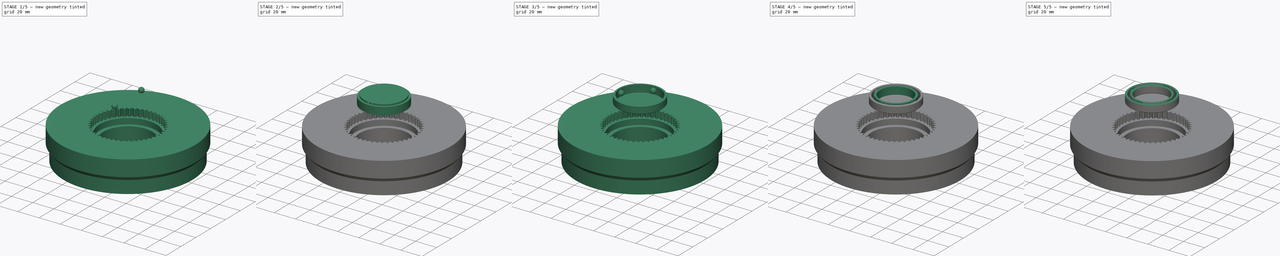
[diagram: build sequence overview — one tinted view per stage of 5, left to right]
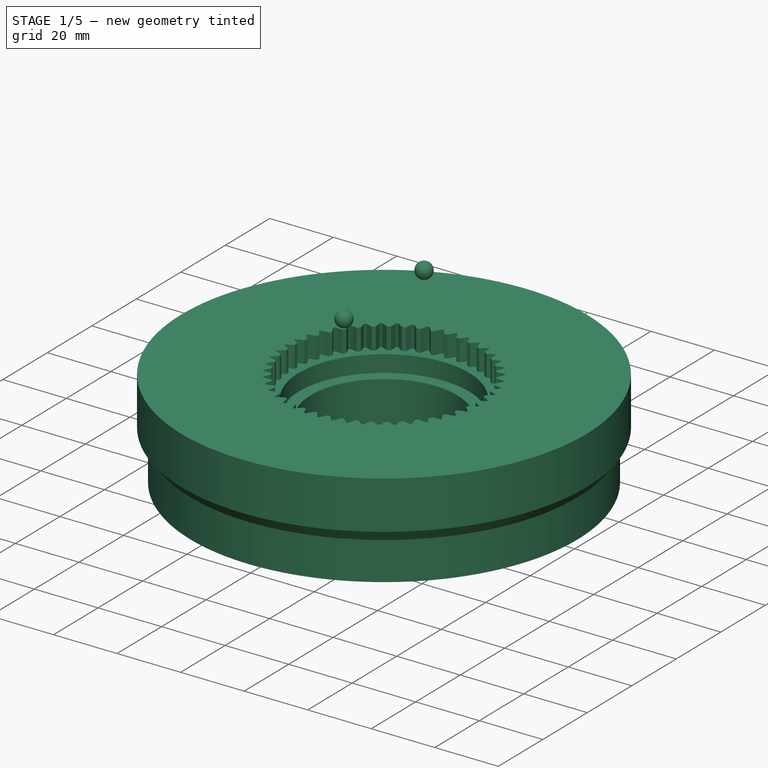
[diagram: stage 1 of 5 — iso view after this stage's code; geometry added in this stage tinted green]
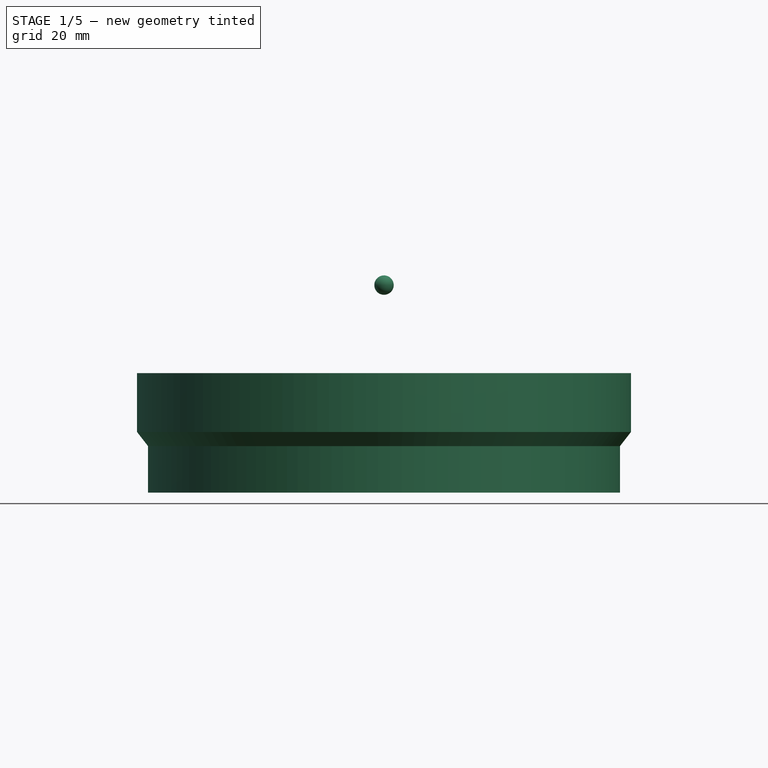
[diagram: stage 1 of 5 — front view after this stage's code; geometry added in this stage tinted green]
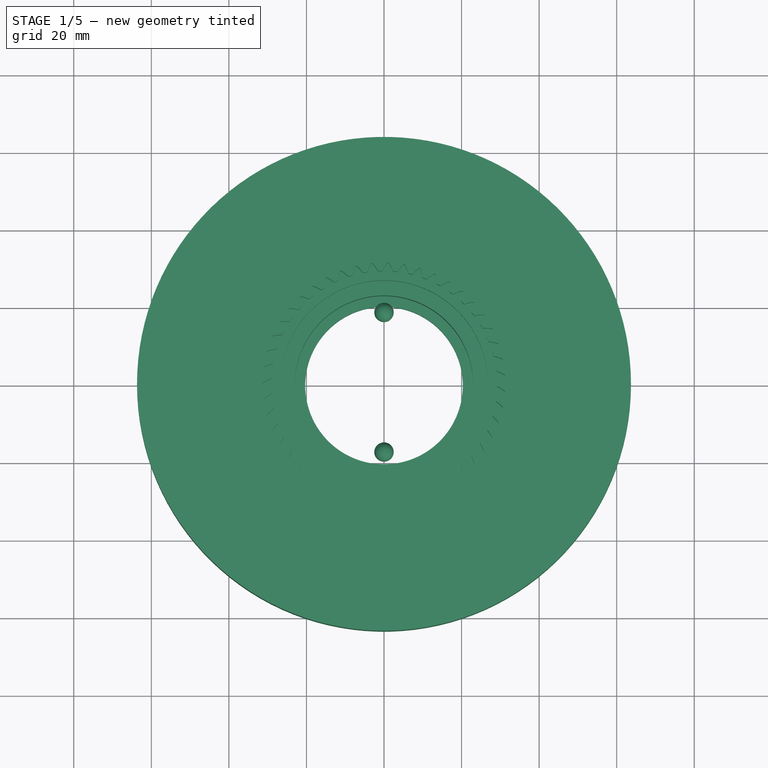
[diagram: stage 1 of 5 — top view after this stage's code; geometry added in this stage tinted green]
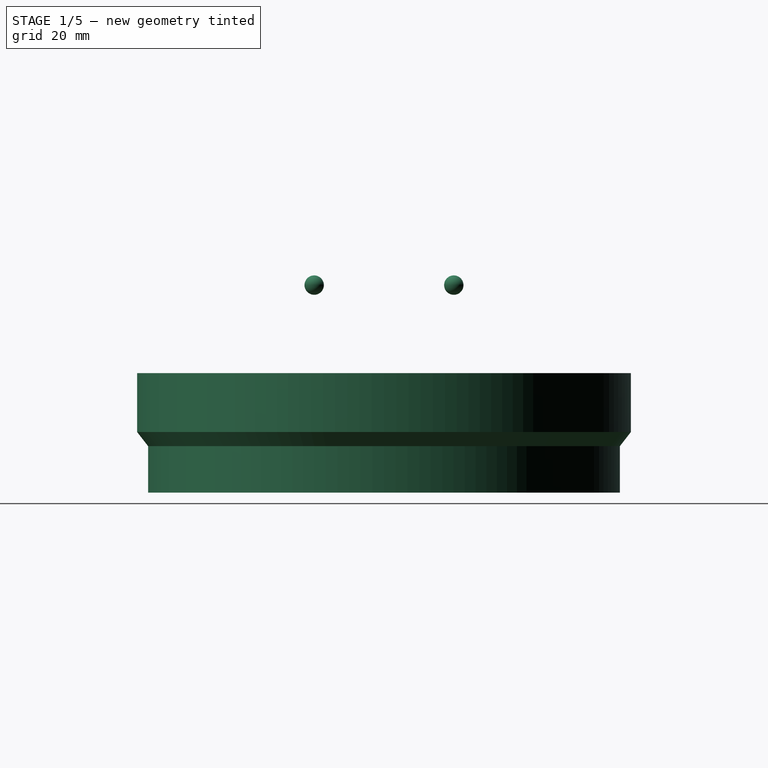
[diagram: stage 1 of 5 — right view after this stage's code; geometry added in this stage tinted green]
FCSTD DOCUMENT
Label: slewing_ring1
License: CC-BY 3.0
LicenseURL: http://creativecommons.org/licenses/by/3.0/
objects: Part::Chamfer×6, Part::Cylinder×4, Part::Sphere×4, Part::Cut×3, Sketcher::SketchObject×1, Part::MultiFuse×1, Part::Part2DObjectPython×1, Part::Extrusion×1, Part::Revolution×1, Part::Feature×1
note: 23 computed .brp shape members not serialized (recipe doc carries the construction recipe); baked Part::Feature solids carry a one-line shape summary decoded from their .brp

FEATURE [Part::Sphere] Sphere004  label="ballW"
  Angle1 = -90
  Angle2 = 90
  Angle3 = 360
  Placement = pos=(0,18,3.5) rot=(0,0,1;0rad)
  Radius = 2.5
FEATURE [Part::Sphere] Sphere005  label="ballE"
  Angle1 = -90
  Angle2 = 90
  Angle3 = 360
  Placement = pos=(0,-18,3.5) rot=(0,0,1;0rad)
  Radius = 2.5
FEATURE [Part::Part2DObjectPython] MainGear  # Draft 2D object (typed FeaturePython)
  ExternalGear = false
  HighPrecision = true
  Modules = 1.27324
  NumberOfTeeth = 47
  PressureAngle = 30
FEATURE [Part::Extrusion] Extrude  label="MainGearCutout"
  Base = -> MainGear
  Dir = (0,0,7)
  Placement = pos=(0,0,-26) rot=(0,0,1;0rad)
  Solid = true
FEATURE [Part::Revolution] Revolve
  Angle = 360
  Axis = (0,0,1)
  Base = (0,0,0)
  Source = -> Sketch
FEATURE [Part::Feature] Solid  label="Solid1"
  shape: bbox 127.4 x 127.4 x 30.8 mm, 10 faces (baked)
FEATURE [Part::Cut] Cut002
  Base = -> Solid
  Tool = -> Extrude
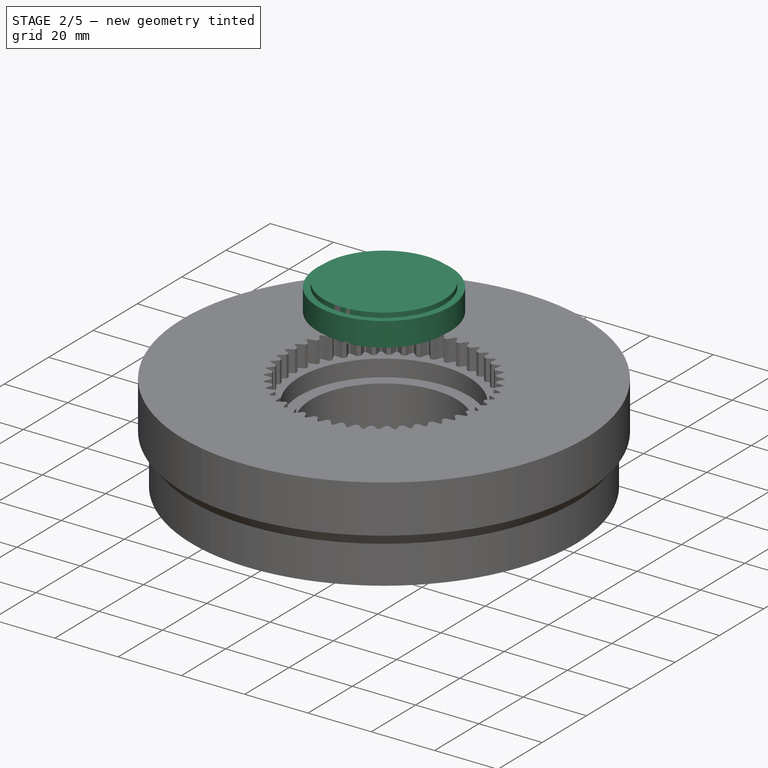
[diagram: stage 2 of 5 — iso view after this stage's code; geometry added in this stage tinted green]
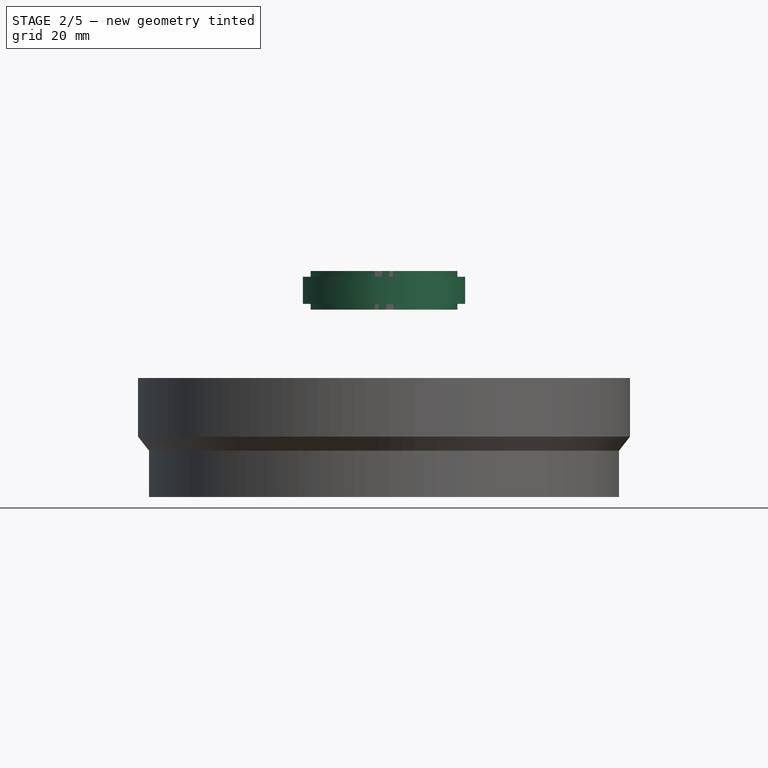
[diagram: stage 2 of 5 — front view after this stage's code; geometry added in this stage tinted green]
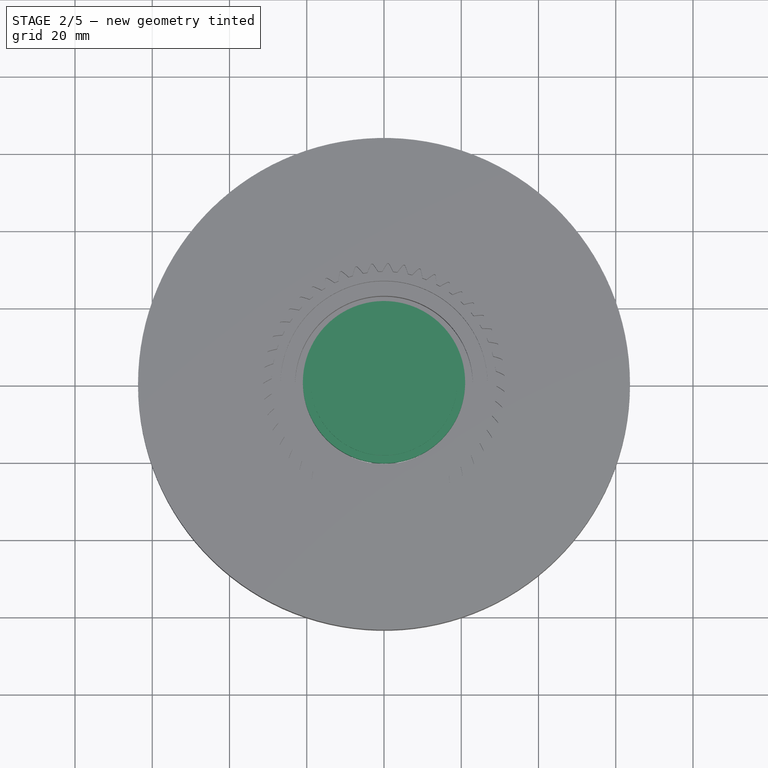
[diagram: stage 2 of 5 — top view after this stage's code; geometry added in this stage tinted green]
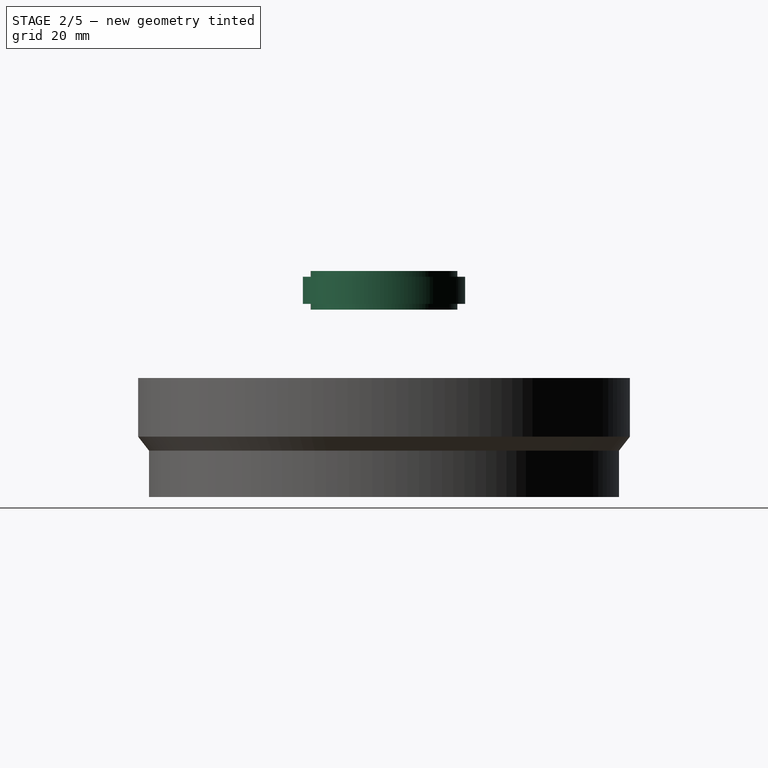
[diagram: stage 2 of 5 — right view after this stage's code; geometry added in this stage tinted green]
FEATURE [Sketcher::SketchObject] Sketch  label="Sketch1"
  Placement = pos=(0,0,-50) rot=(1,0,0;1.5708rad)
  sketch-geometry (10):
    g0: LineSegment StartX=-60.8487 StartY=0 StartZ=0 EndX=-60.8487 EndY=11.9881 EndZ=0
    g1: LineSegment StartX=-60.8487 StartY=11.9881 StartZ=0 EndX=-63.6812 EndY=15.6299 EndZ=0
    g2: LineSegment StartX=-63.6812 StartY=15.6299 StartZ=0 EndX=-63.6812 EndY=30.7971 EndZ=0
    g3: LineSegment StartX=-63.6812 StartY=30.7971 StartZ=0 EndX=-26.8058 EndY=30.7971 EndZ=0
    g4: LineSegment StartX=-26.8058 StartY=30.7971 StartZ=0 EndX=-26.8058 EndY=18.6759 EndZ=0
    g5: LineSegment StartX=-26.8058 StartY=18.6759 StartZ=0 EndX=-23.0152 EndY=18.6759 EndZ=0
    g6: LineSegment StartX=-23.0152 StartY=18.6759 StartZ=0 EndX=-23.0152 EndY=5.72736 EndZ=0
    g7: LineSegment StartX=-23.0152 StartY=5.72736 StartZ=0 EndX=-20.3175 EndY=5.72736 EndZ=0
    g8: LineSegment StartX=-20.3175 StartY=5.72736 StartZ=0 EndX=-20.3175 EndY=0 EndZ=0
    g9: LineSegment StartX=-20.3175 StartY=0 StartZ=0 EndX=-60.8487 EndY=0 EndZ=0
  constraints (20):
    c: Vertical(g0)
    c: Coincident(g0,g1)
    c: Coincident(g1,g2)
    c: Vertical(g2)
    c: Coincident(g2,g3)
    c: Horizontal(g3)
    c: Coincident(g3,g4)
    c: Vertical(g4)
    c: Coincident(g4,g5)
    c: Horizontal(g5)
    c: Coincident(g5,g6)
    c: Vertical(g6)
    c: Coincident(g6,g7)
    c: Coincident(g7,g8)
    c: Coincident(g8,g9)
    c: Horizontal(g9)
    c: Coincident(g0,g9)
    c: DistanceY(g-1,g8) = 0
    c: Vertical(g8)
    c: Horizontal(g7)
FEATURE [Part::Cylinder] Cylinder  label="Cylinder21R"
  Angle = 360
  Height = 7
  Radius = 21
FEATURE [Part::Cylinder] Cylinder001  label="Cylinder19R"
  Angle = 360
  Height = 10
  Placement = pos=(0,0,-1.5) rot=(0,0,1;0rad)
  Radius = 19
FEATURE [Part::Sphere] Sphere  label="ballN"
  Angle1 = -90
  Angle2 = 90
  Angle3 = 360
  Placement = pos=(18,0,3.5) rot=(0,0,1;0rad)
  Radius = 2.5
FEATURE [Part::Sphere] Sphere3  label="ballS"
  Angle1 = -90
  Angle2 = 90
  Angle3 = 360
  Placement = pos=(-18,0,3.5) rot=(0,0,1;0rad)
  Radius = 2.5
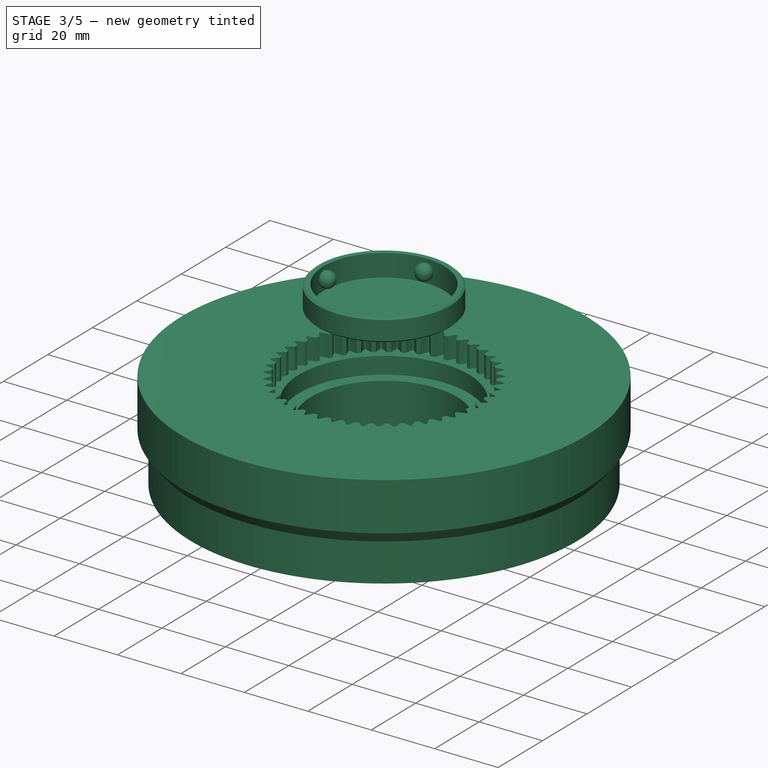
[diagram: stage 3 of 5 — iso view after this stage's code; geometry added in this stage tinted green]
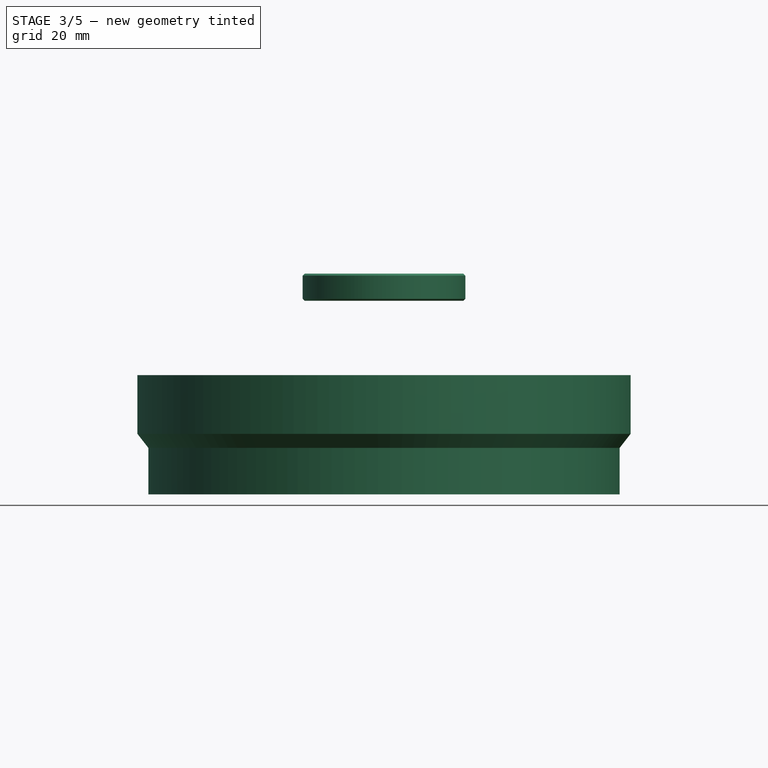
[diagram: stage 3 of 5 — front view after this stage's code; geometry added in this stage tinted green]
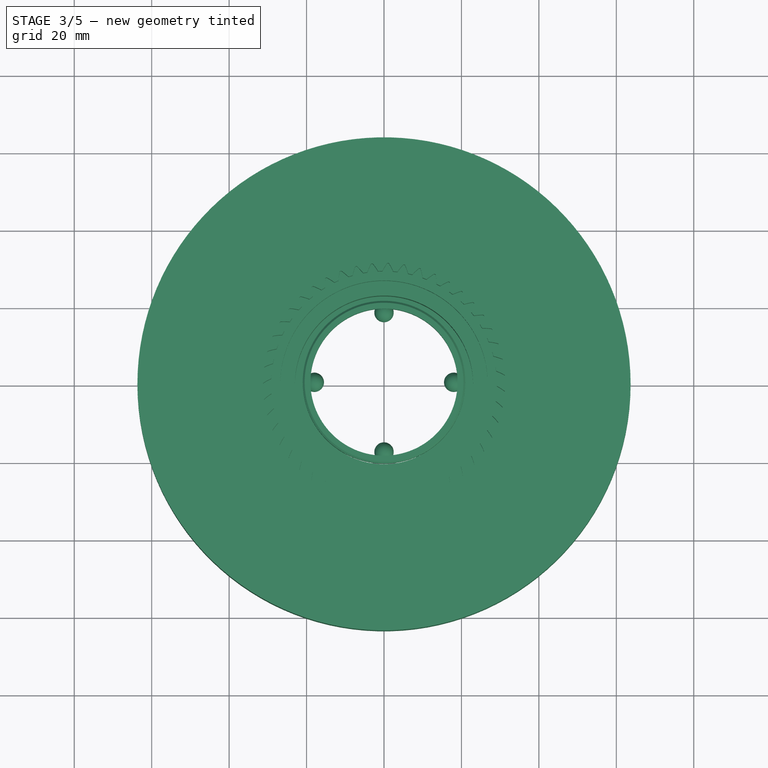
[diagram: stage 3 of 5 — top view after this stage's code; geometry added in this stage tinted green]
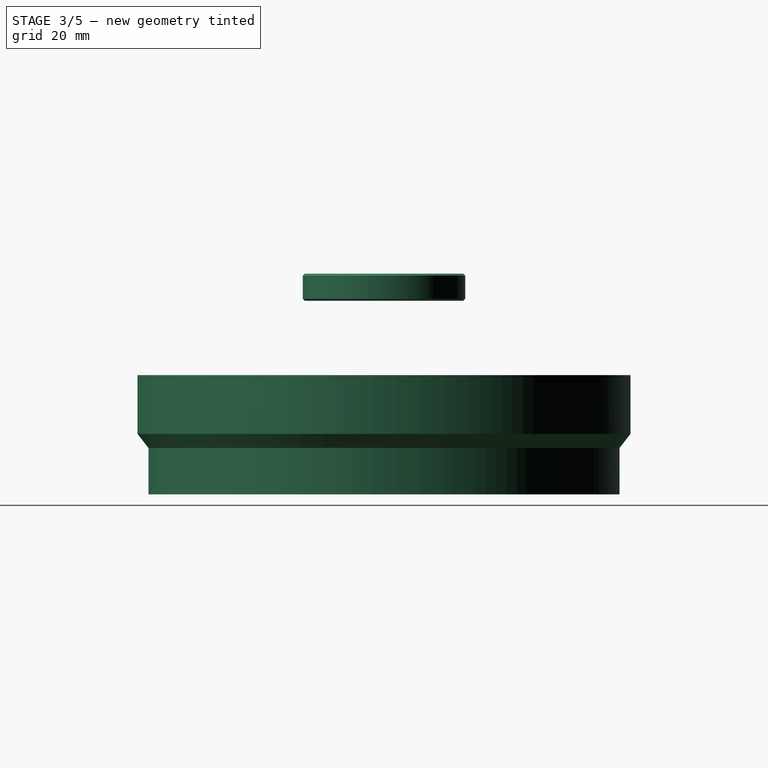
[diagram: stage 3 of 5 — right view after this stage's code; geometry added in this stage tinted green]
FEATURE [Part::Cut] Cut  label="OuterRace"
  Base = -> Cylinder
  Tool = -> Cylinder001
FEATURE [Part::Chamfer] Chamfer
  Base = -> Cut
  Edges = 1 edges r=0.5: [Edge1]
FEATURE [Part::Chamfer] Chamfer001
  Base = -> Chamfer
  Edges = 1 edges r=0.5: [Edge3]
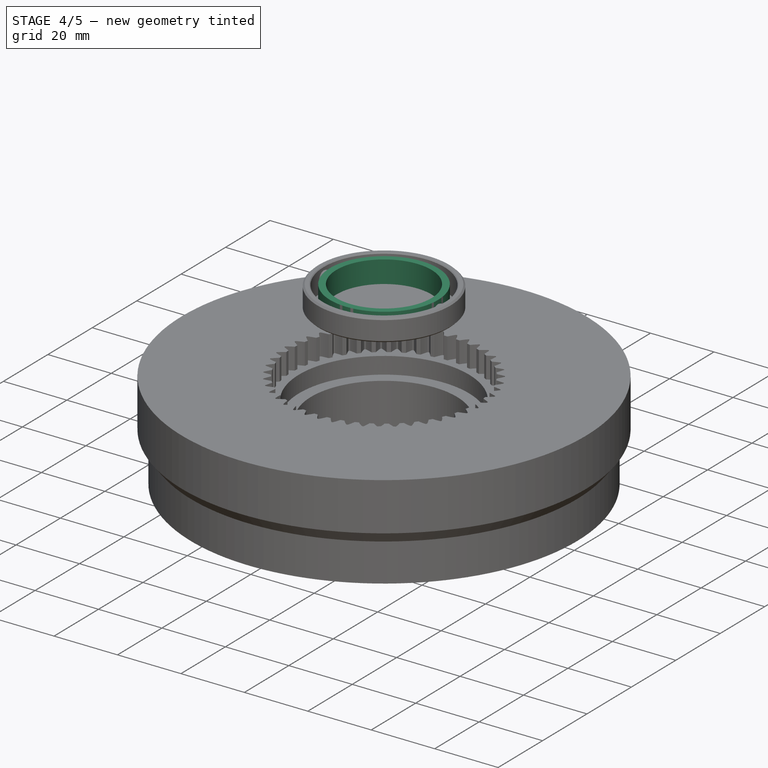
[diagram: stage 4 of 5 — iso view after this stage's code; geometry added in this stage tinted green]
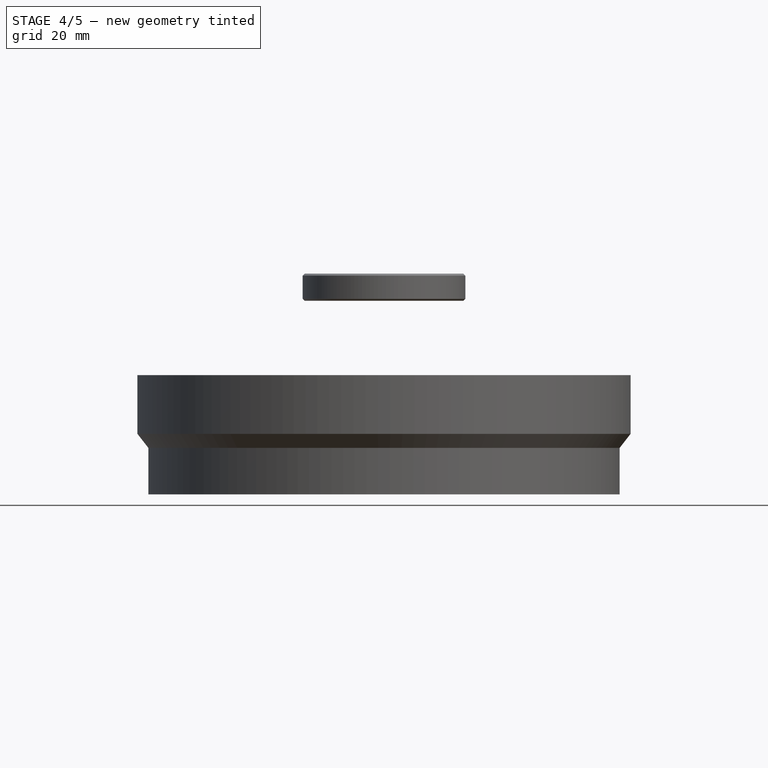
[diagram: stage 4 of 5 — front view after this stage's code; geometry added in this stage tinted green]
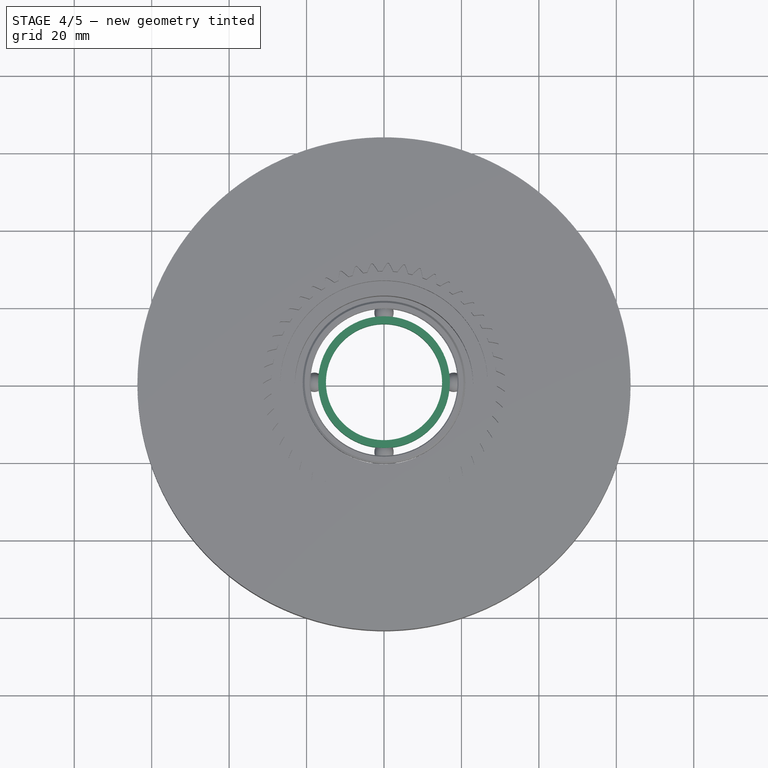
[diagram: stage 4 of 5 — top view after this stage's code; geometry added in this stage tinted green]
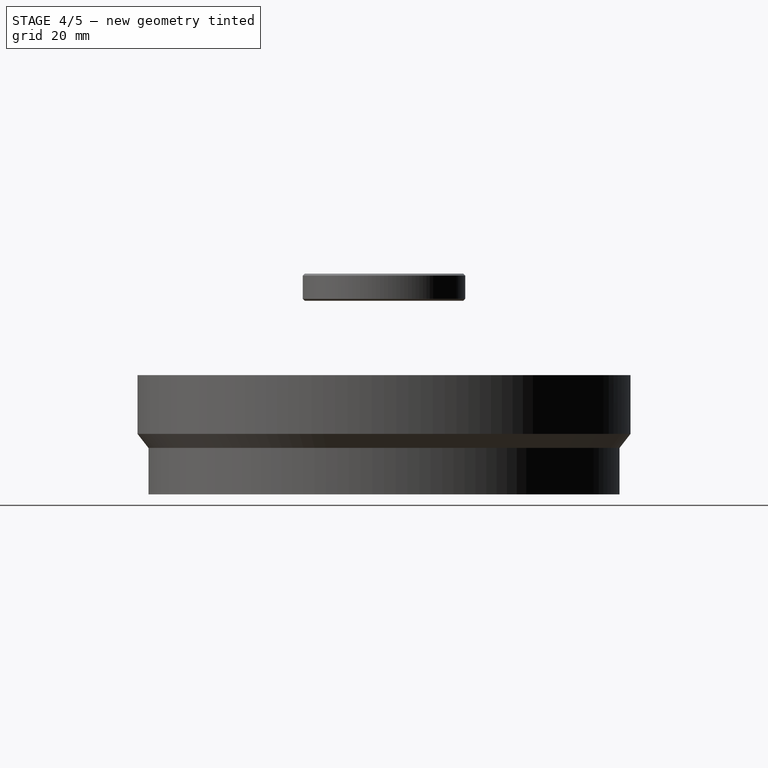
[diagram: stage 4 of 5 — right view after this stage's code; geometry added in this stage tinted green]
FEATURE [Part::Cylinder] Cylinder002  label="Cylinder17R"
  Angle = 360
  Height = 7
  Radius = 17
FEATURE [Part::Cylinder] Cylinder003  label="Cylinder15R"
  Angle = 360
  Height = 10
  Radius = 15
FEATURE [Part::Cut] Cut001
  Base = -> Cylinder002
  Tool = -> Cylinder003
FEATURE [Part::Chamfer] Chamfer005
  Base = -> Chamfer001
  Edges = 1 edges r=0.25: [Edge10]
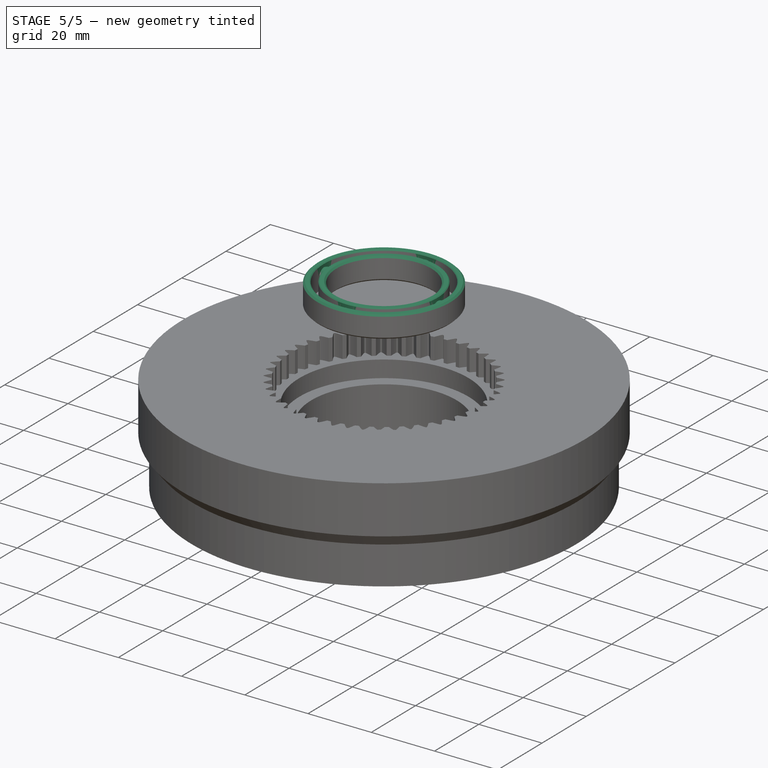
[diagram: stage 5 of 5 — iso view after this stage's code; geometry added in this stage tinted green]
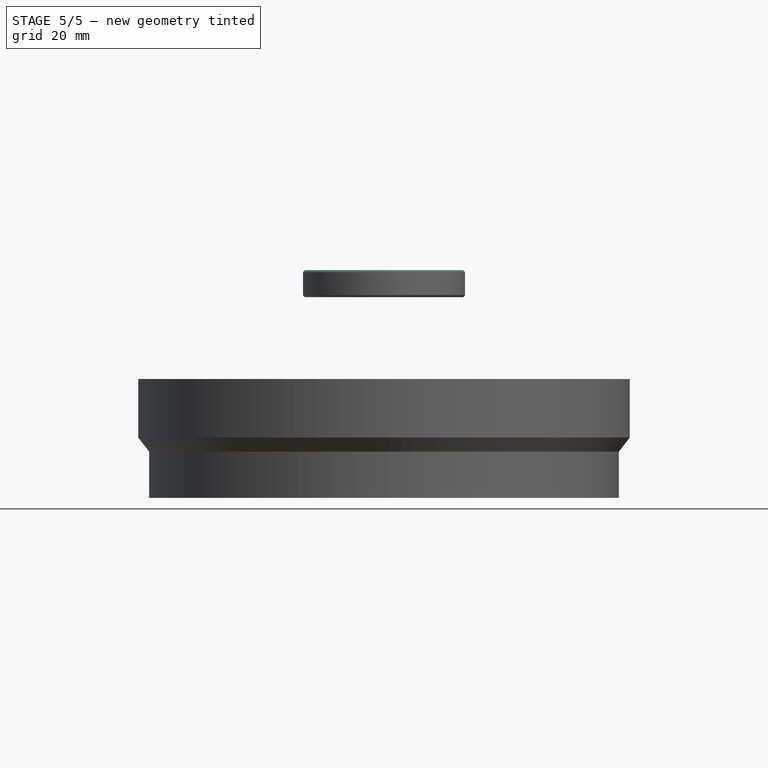
[diagram: stage 5 of 5 — front view after this stage's code; geometry added in this stage tinted green]
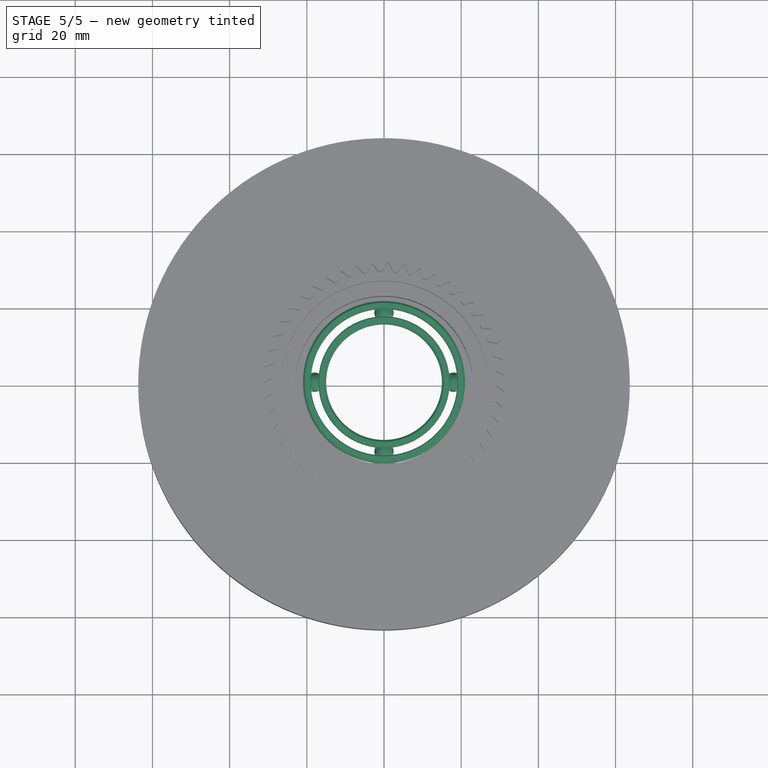
[diagram: stage 5 of 5 — top view after this stage's code; geometry added in this stage tinted green]
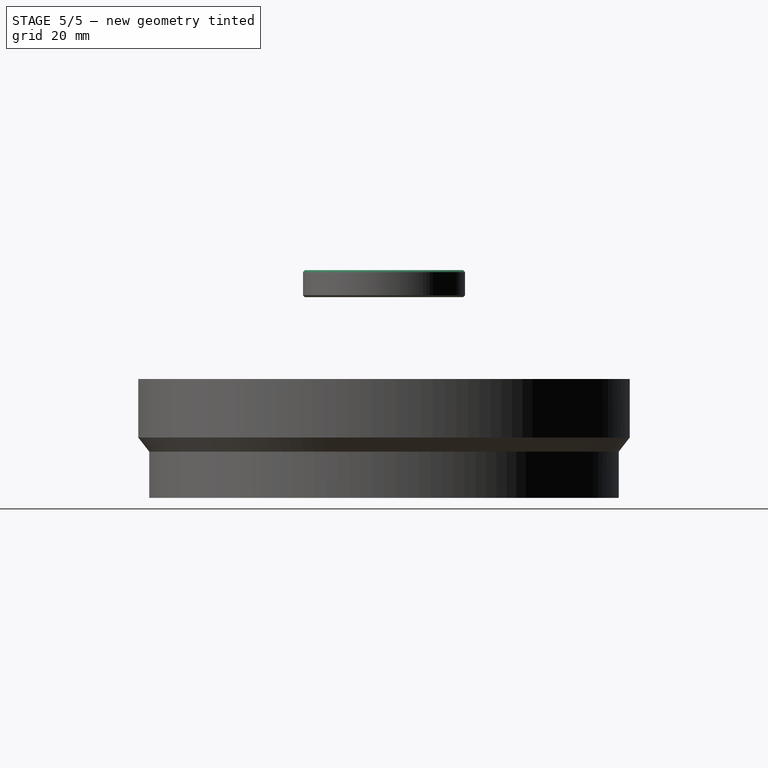
[diagram: stage 5 of 5 — right view after this stage's code; geometry added in this stage tinted green]
FEATURE [Part::Chamfer] Chamfer002
  Base = -> Cut001
  Edges = 1 edges r=0.5: [Edge5]
FEATURE [Part::Chamfer] Chamfer003
  Base = -> Chamfer002
  Edges = 1 edges r=0.5: [Edge11]
FEATURE [Part::Chamfer] Chamfer004
  Base = -> Chamfer003
  Edges = 1 edges r=0.25: [Edge12]
FEATURE [Part::MultiFuse] Fusion  label="ballrace30x42x7"
  Placement = pos=(0,0,2) rot=(0,0,1;0rad)
  Shapes = -> [Chamfer004,Chamfer005,Sphere,Sphere3,Sphere004,Sphere005]
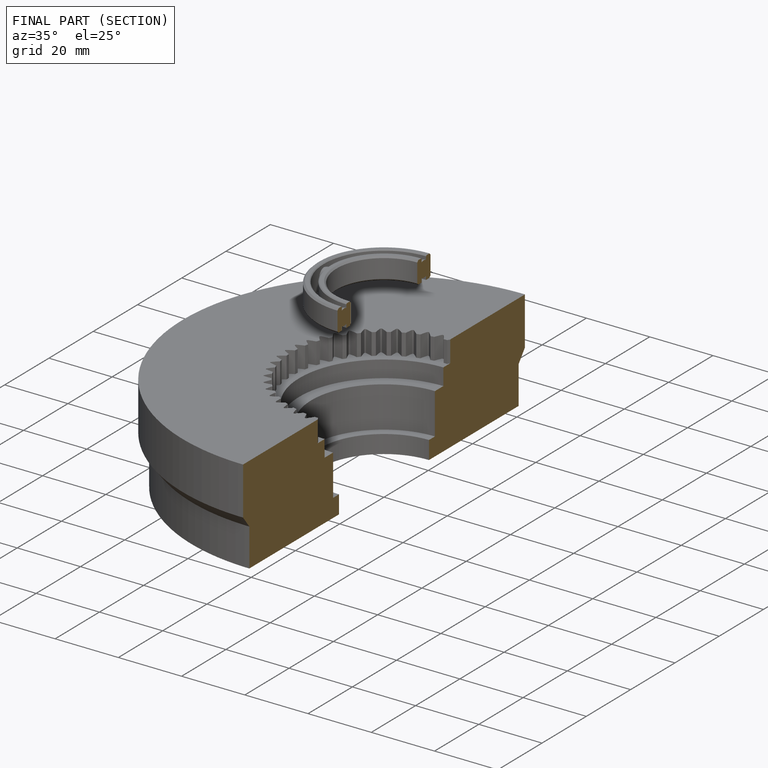
[diagram: finished part — half-section view (interior)]
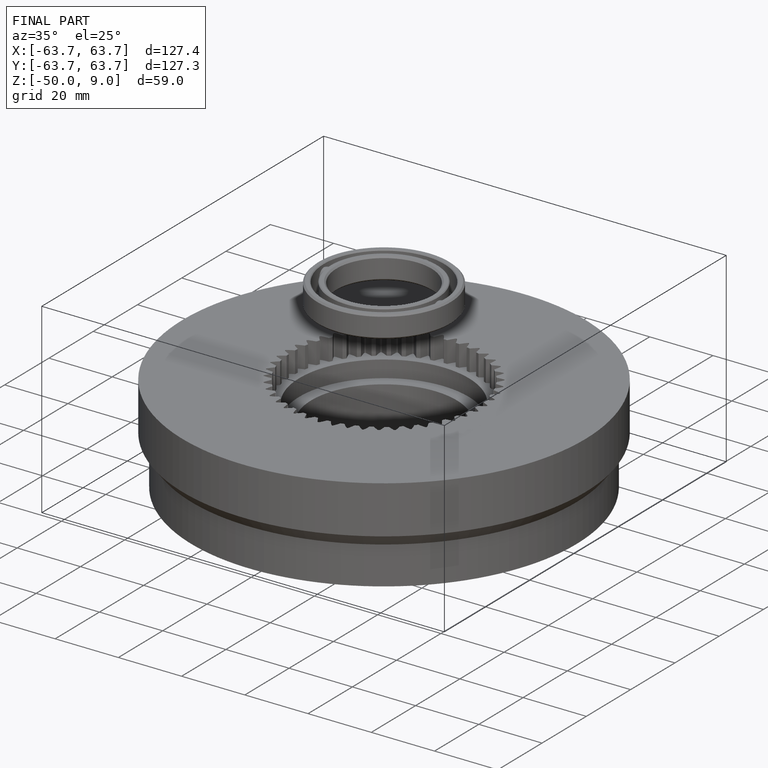
[diagram: finished part — iso view with bounding-box wireframe]
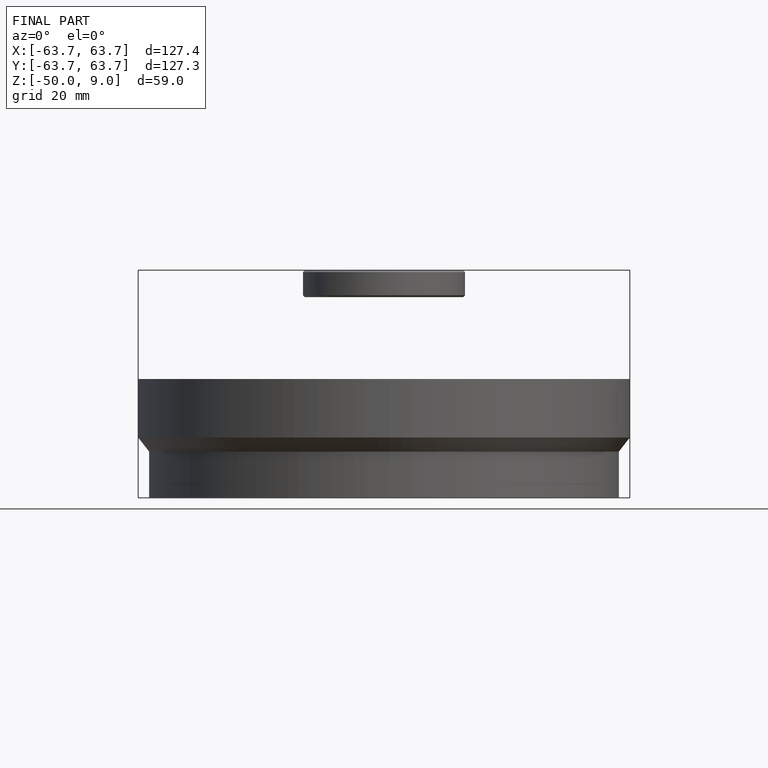
[diagram: finished part — front view with bounding-box wireframe]
